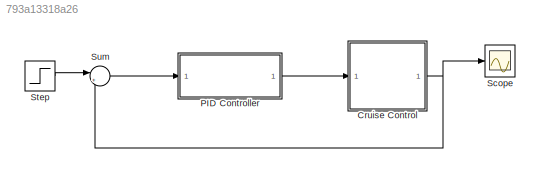
MODEL slx_793a13318a26
KIND model
CONFIG AbsTol = auto
CONFIG EnableMultiTasking = off
CONFIG FixedStep = auto
CONFIG MaxStep = auto
CONFIG MinStep = auto
CONFIG RelTol = 1e-3
CONFIG SampleTimeConstraint = Unconstrained
CONFIG Solver = ode45
CONFIG SolverName = ode45
CONFIG StartTime = 0.0
CONFIG StopTime = 10
BLOCK [ModelReference] Cruise Control
  ModelNameDialog = Cruise_Control
  ModelReferenceVersion = 1.23
  Ports = [1, 1]
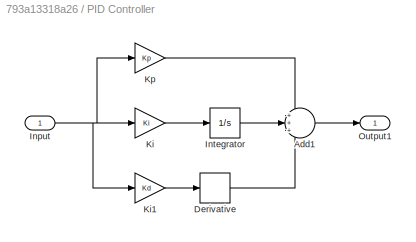
BLOCK [SubSystem] PID Controller
  Ports = [1, 1]
  RequestExecContextInheritance = off
BLOCK [Sum] PID Controller/Add1
  Inputs = +++
  Ports = [3, 1]
BLOCK [Derivative] PID Controller/Derivative
BLOCK [Inport] PID Controller/Input
BLOCK [Integrator] PID Controller/Integrator
  Ports = [1, 1]
BLOCK [Gain] PID Controller/Ki
  Gain = Ki
BLOCK [Gain] PID Controller/Ki1
  Gain = Kd
BLOCK [Gain] PID Controller/Kp
  Gain = Kp
BLOCK [Outport] PID Controller/Output1
  OutDataTypeStr = double
  PortDimensions = 1
  SampleTime = 0
  SamplingMode = Sample based
  SignalType = real
BLOCK [Scope] Scope
  Floating = off
  NumInputPorts = 1
  Ports = [1]
  ScopeSpecificationString = Simulink.scopes.TimeScopeBlockCfg('CurrentConfiguration', extmgr.ConfigurationSet(extmgr.Configuration('Core','General UI',true),extmgr.Configuration('Core','Source UI',true),extmgr.Configuration('Sources','WiredSimulink',true),extmgr.Configuration('Visuals','Time Domain',true,'SerializedDisplays',{struct('MinYLimReal','-1.26041','MaxYLimReal','11.34369','YLabelReal','','MinYLimMag','0.00000','Max...<+1367ch>
BLOCK [Step] Step
  After = u
  SampleTime = 0
  Time = 0
BLOCK [Sum] Sum
  Inputs = |+-
  Ports = [2, 1]
NET Cruise Control:1 -> Scope:1, Sum:2
LINE PID Controller/Add1:1 -> PID Controller/Output1:1
LINE PID Controller/Derivative:1 -> PID Controller/Add1:3
NET PID Controller/Input:1 -> PID Controller/Ki1:1, PID Controller/Ki:1, PID Controller/Kp:1
LINE PID Controller/Integrator:1 -> PID Controller/Add1:2
LINE PID Controller/Ki1:1 -> PID Controller/Derivative:1
LINE PID Controller/Ki:1 -> PID Controller/Integrator:1
LINE PID Controller/Kp:1 -> PID Controller/Add1:1
LINE PID Controller:1 -> Cruise Control:1
LINE Step:1 -> Sum:1
LINE Sum:1 -> PID Controller:1
note: NET lines group one-source signal fan-out (src -> all destinations, sorted); 1:1 wires keep LINE
